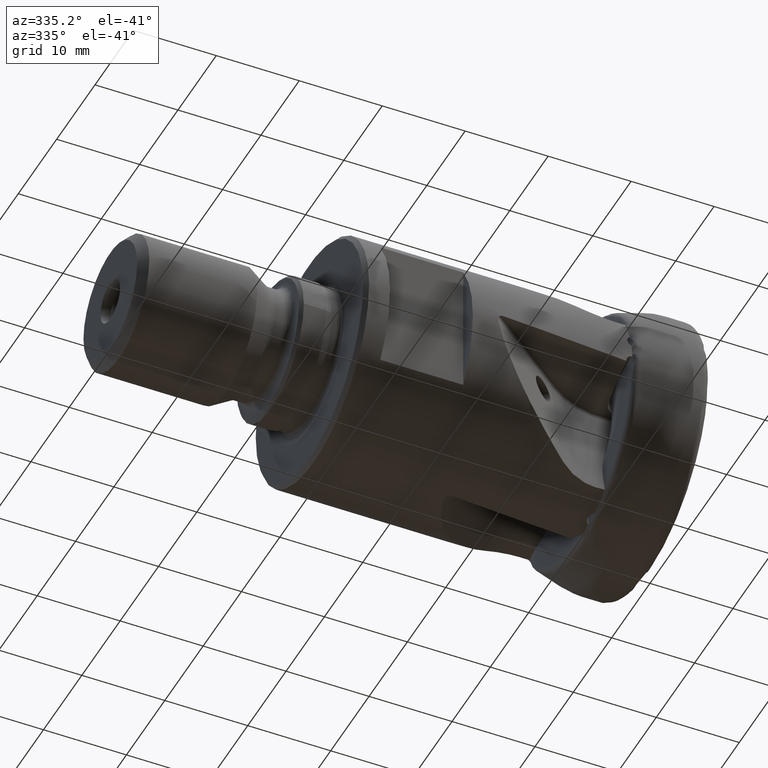
[diagram: clean part render]
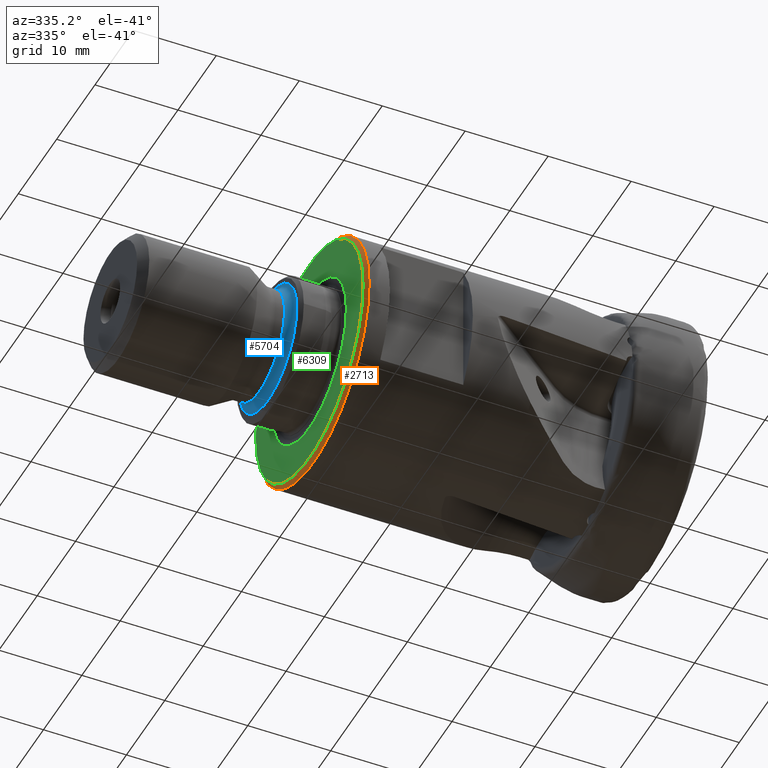
[diagram: same view with three faces highlighted in distinct colors, each labeled with its STEP entity id]
A machine part, auxiliary view with three faces highlighted in distinct colors.
Their STEP definitions:

[orange] entity #2713 — the highlighted conical surface has half-angle 45 deg.
#16 = DIRECTION ( 'NONE',  ( 0.0000000000000000000, 1.000000000000000000, 0.0000000000000000000 ) ) ;
#176 = DIRECTION ( 'NONE',  ( 1.000000000000000000, 1.224646799147351500E-016, -0.0000000000000000000 ) ) ;
#267 = EDGE_LOOP ( 'NONE', ( #5262 ) ) ;
#385 = FACE_BOUND ( 'NONE', #267, .T. ) ;
#1421 = CONICAL_SURFACE ( 'NONE', #3595, 14.50000000000000000, 0.7853981633974466100 ) ;
#2049 = FACE_OUTER_BOUND ( 'NONE', #5535, .T. ) ;
#2461 = CARTESIAN_POINT ( 'NONE',  ( -41.04999999999999700, 13.99999999999999600, 0.0000000000000000000 ) ) ;
#2663 = DIRECTION ( 'NONE',  ( 1.000000000000000000, 1.224646799147351500E-016, -0.0000000000000000000 ) ) ;
#2713 = ADVANCED_FACE ( 'NONE', ( #385, #2049 ), #1421, .T. ) ;
#3057 = VERTEX_POINT ( 'NONE', #2461 ) ;
#3084 = DIRECTION ( 'NONE',  ( 1.000000000000000000, 1.224646799147351500E-016, -0.0000000000000000000 ) ) ;
#3595 = AXIS2_PLACEMENT_3D ( 'NONE', #4738, #176, #3732 ) ;
#3732 = DIRECTION ( 'NONE',  ( 0.0000000000000000000, 1.000000000000000000, 0.0000000000000000000 ) ) ;
#4395 = VERTEX_POINT ( 'NONE', #5527 ) ;
#4738 = CARTESIAN_POINT ( 'NONE',  ( -40.54999999999999700, -4.965942770542509800E-015, 0.0000000000000000000 ) ) ;
#5215 = AXIS2_PLACEMENT_3D ( 'NONE', #6128, #3084, #16 ) ;
#5262 = ORIENTED_EDGE ( 'NONE', *, *, #6217, .T. ) ;
#5527 = CARTESIAN_POINT ( 'NONE',  ( -40.54999999999999700, 14.49999999999999500, 0.0000000000000000000 ) ) ;
#5535 = EDGE_LOOP ( 'NONE', ( #5710 ) ) ;
#5608 = AXIS2_PLACEMENT_3D ( 'NONE', #5715, #2663, #6221 ) ;
#5710 = ORIENTED_EDGE ( 'NONE', *, *, #5795, .F. ) ;
#5715 = CARTESIAN_POINT ( 'NONE',  ( -41.04999999999999700, -5.027175110499877400E-015, 0.0000000000000000000 ) ) ;
#5732 = CIRCLE ( 'NONE', #5215, 14.50000000000000000 ) ;
#5795 = EDGE_CURVE ( 'NONE', #4395, #4395, #5732, .T. ) ;
#6128 = CARTESIAN_POINT ( 'NONE',  ( -40.54999999999999700, -4.965942770542509800E-015, 0.0000000000000000000 ) ) ;
#6130 = CIRCLE ( 'NONE', #5608, 14.00000000000000200 ) ;
#6217 = EDGE_CURVE ( 'NONE', #3057, #3057, #6130, .T. ) ;
#6221 = DIRECTION ( 'NONE',  ( 0.0000000000000000000, 1.000000000000000000, 0.0000000000000000000 ) ) ;

[blue] entity #5704 — the highlighted toroidal blend (fillet) surface has major radius 7.5 mm and minor (blend) radius 1 mm.
#88 = AXIS2_PLACEMENT_3D ( 'NONE', #5221, #2170, #5737 ) ;
#815 = VERTEX_POINT ( 'NONE', #2438 ) ;
#1110 = TOROIDAL_SURFACE ( 'NONE', #2058, 7.500000000000000000, 1.000000000000000400 ) ;
#1180 = ORIENTED_EDGE ( 'NONE', *, *, #3539, .F. ) ;
#1438 = CARTESIAN_POINT ( 'NONE',  ( -47.05000000000000400, 6.499999999999993800, 0.0000000000000000000 ) ) ;
#1809 = CIRCLE ( 'NONE', #88, 7.500000000000007100 ) ;
#1855 = VERTEX_POINT ( 'NONE', #1438 ) ;
#1982 = DIRECTION ( 'NONE',  ( 1.000000000000000000, 1.224646799147351500E-016, -0.0000000000000000000 ) ) ;
#2058 = AXIS2_PLACEMENT_3D ( 'NONE', #5035, #1982, #6571 ) ;
#2170 = DIRECTION ( 'NONE',  ( 1.000000000000000000, 1.224646799147351500E-016, -0.0000000000000000000 ) ) ;
#2347 = DIRECTION ( 'NONE',  ( 1.000000000000000000, 1.224646799147351500E-016, -0.0000000000000000000 ) ) ;
#2438 = CARTESIAN_POINT ( 'NONE',  ( -46.04999999999999700, 7.500000000000000900, 0.0000000000000000000 ) ) ;
#2888 = EDGE_LOOP ( 'NONE', ( #4216 ) ) ;
#3539 = EDGE_CURVE ( 'NONE', #815, #815, #1809, .T. ) ;
#3871 = EDGE_LOOP ( 'NONE', ( #1180 ) ) ;
#4135 = CIRCLE ( 'NONE', #6320, 6.500000000000000000 ) ;
#4216 = ORIENTED_EDGE ( 'NONE', *, *, #5546, .T. ) ;
#5035 = CARTESIAN_POINT ( 'NONE',  ( -47.04999999999999700, -6.071532165918824800E-015, 0.0000000000000000000 ) ) ;
#5037 = FACE_OUTER_BOUND ( 'NONE', #3871, .T. ) ;
#5221 = CARTESIAN_POINT ( 'NONE',  ( -46.04999999999999700, -5.639498510073552300E-015, 0.0000000000000000000 ) ) ;
#5404 = CARTESIAN_POINT ( 'NONE',  ( -47.05000000000000400, -5.761963189988289000E-015, 0.0000000000000000000 ) ) ;
#5546 = EDGE_CURVE ( 'NONE', #1855, #1855, #4135, .T. ) ;
#5704 = ADVANCED_FACE ( 'NONE', ( #6375, #5037 ), #1110, .F. ) ;
#5737 = DIRECTION ( 'NONE',  ( 0.0000000000000000000, 1.000000000000000000, 0.0000000000000000000 ) ) ;
#5926 = DIRECTION ( 'NONE',  ( 0.0000000000000000000, 1.000000000000000000, 0.0000000000000000000 ) ) ;
#6320 = AXIS2_PLACEMENT_3D ( 'NONE', #5404, #2347, #5926 ) ;
#6375 = FACE_OUTER_BOUND ( 'NONE', #2888, .T. ) ;
#6571 = DIRECTION ( 'NONE',  ( -1.224646799147351500E-016, 1.000000000000000000, 0.0000000000000000000 ) ) ;

[green] entity #6309 — the highlighted planar face has unit normal (-1, -0, 0).
#219 = CARTESIAN_POINT ( 'NONE',  ( -41.04999999999999700, -5.027175110499877400E-015, 0.0000000000000000000 ) ) ;
#391 = EDGE_CURVE ( 'NONE', #2652, #2652, #3680, .T. ) ;
#551 = FACE_OUTER_BOUND ( 'NONE', #5046, .T. ) ;
#648 = CARTESIAN_POINT ( 'NONE',  ( -41.04999999999999700, 13.99999999999999600, 0.0000000000000000000 ) ) ;
#667 = PLANE ( 'NONE',  #779 ) ;
#779 = AXIS2_PLACEMENT_3D ( 'NONE', #648, #1184, #4747 ) ;
#1184 = DIRECTION ( 'NONE',  ( -1.000000000000000000, -1.224646799147351500E-016, 0.0000000000000000000 ) ) ;
#2461 = CARTESIAN_POINT ( 'NONE',  ( -41.04999999999999700, 13.99999999999999600, 0.0000000000000000000 ) ) ;
#2488 = ORIENTED_EDGE ( 'NONE', *, *, #6217, .F. ) ;
#2652 = VERTEX_POINT ( 'NONE', #4960 ) ;
#2663 = DIRECTION ( 'NONE',  ( 1.000000000000000000, 1.224646799147351500E-016, -0.0000000000000000000 ) ) ;
#3057 = VERTEX_POINT ( 'NONE', #2461 ) ;
#3264 = FACE_BOUND ( 'NONE', #3900, .T. ) ;
#3680 = CIRCLE ( 'NONE', #3686, 9.650000000000000400 ) ;
#3686 = AXIS2_PLACEMENT_3D ( 'NONE', #219, #3775, #4285 ) ;
#3775 = DIRECTION ( 'NONE',  ( 1.000000000000000000, 1.224646799147351500E-016, -0.0000000000000000000 ) ) ;
#3900 = EDGE_LOOP ( 'NONE', ( #4283 ) ) ;
#4283 = ORIENTED_EDGE ( 'NONE', *, *, #391, .T. ) ;
#4285 = DIRECTION ( 'NONE',  ( 0.0000000000000000000, 1.000000000000000000, 0.0000000000000000000 ) ) ;
#4747 = DIRECTION ( 'NONE',  ( 1.224646799147351500E-016, -1.000000000000000000, 0.0000000000000000000 ) ) ;
#4960 = CARTESIAN_POINT ( 'NONE',  ( -41.04999999999999700, 9.649999999999995000, 0.0000000000000000000 ) ) ;
#5046 = EDGE_LOOP ( 'NONE', ( #2488 ) ) ;
#5608 = AXIS2_PLACEMENT_3D ( 'NONE', #5715, #2663, #6221 ) ;
#5715 = CARTESIAN_POINT ( 'NONE',  ( -41.04999999999999700, -5.027175110499877400E-015, 0.0000000000000000000 ) ) ;
#6130 = CIRCLE ( 'NONE', #5608, 14.00000000000000200 ) ;
#6217 = EDGE_CURVE ( 'NONE', #3057, #3057, #6130, .T. ) ;
#6221 = DIRECTION ( 'NONE',  ( 0.0000000000000000000, 1.000000000000000000, 0.0000000000000000000 ) ) ;
#6309 = ADVANCED_FACE ( 'NONE', ( #3264, #551 ), #667, .T. ) ;